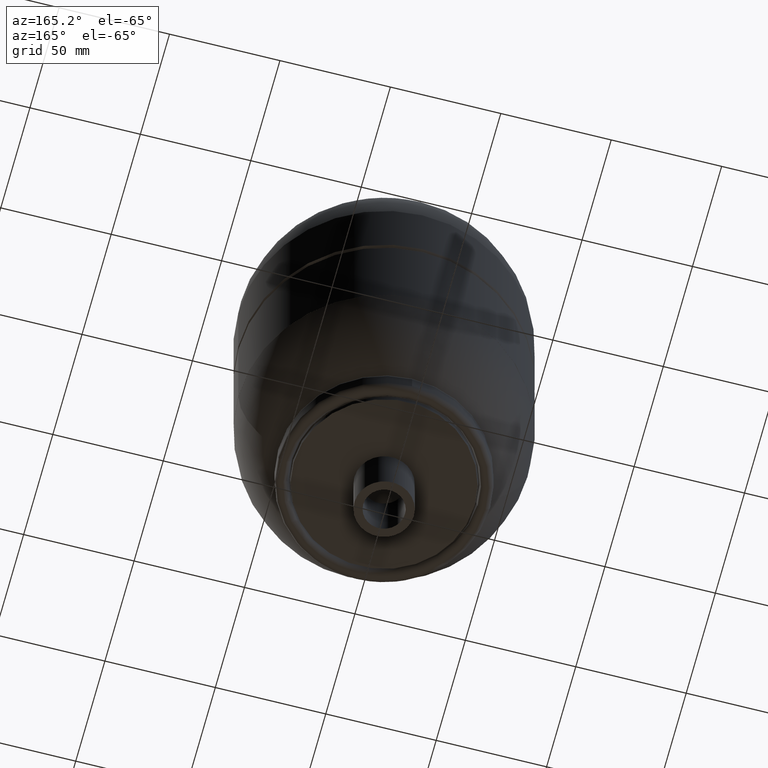
[diagram: clean part render]
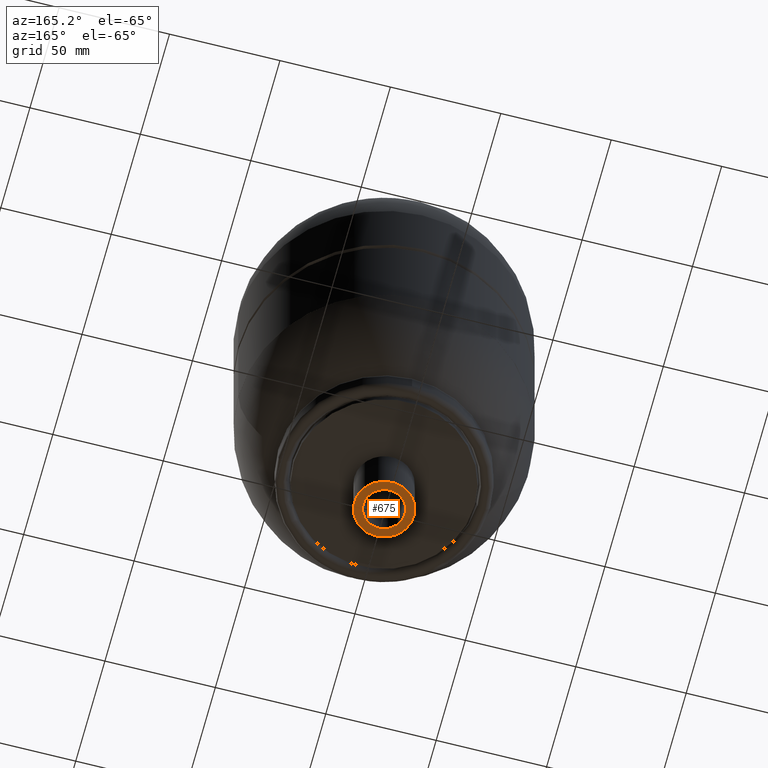
[diagram: same view with one face highlighted and labeled with its STEP entity id]
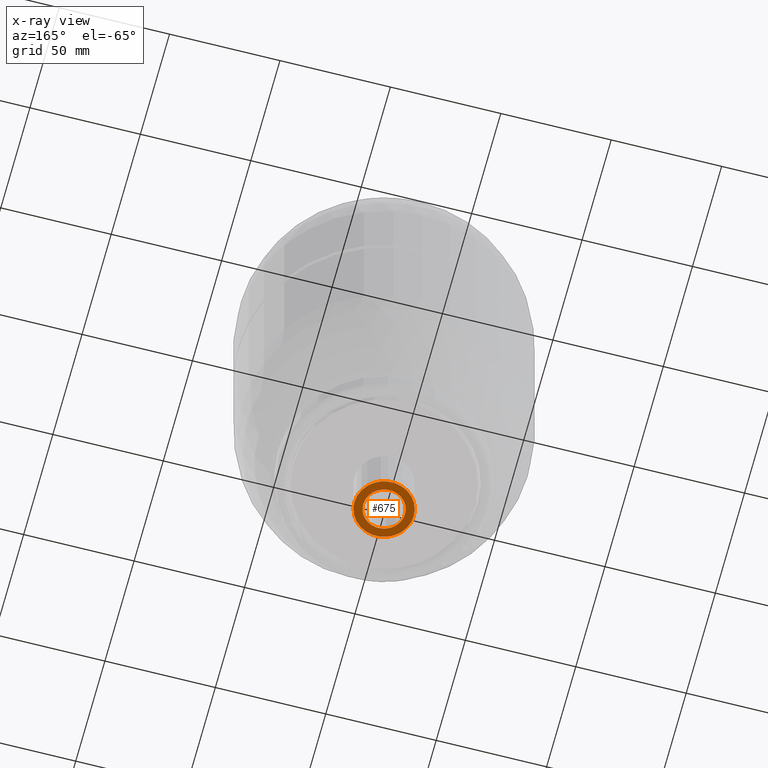
[diagram: x-ray of the same camera — body ghosted, the highlighted face saturated]
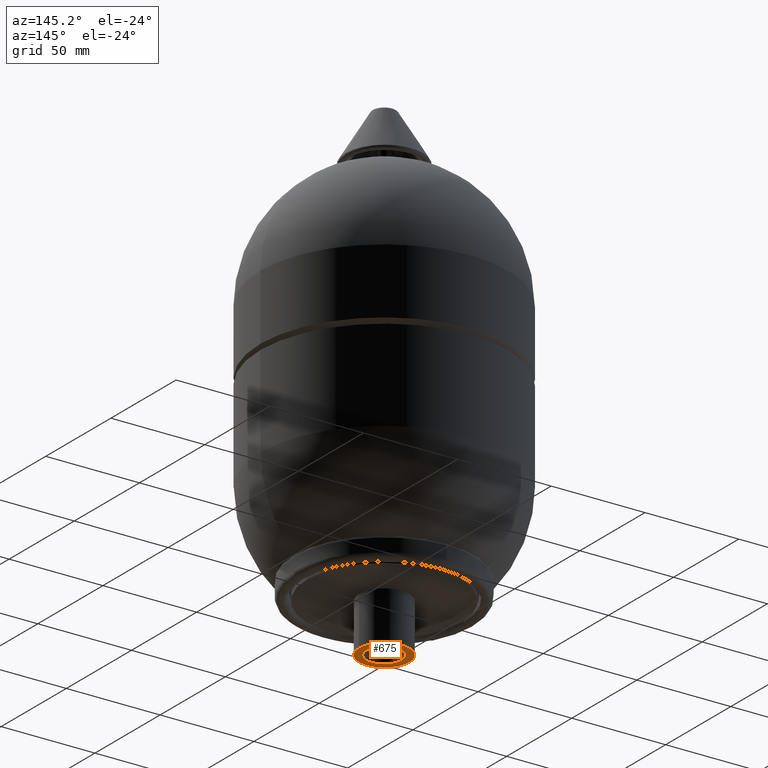
[diagram: same view with one face highlighted and labeled with its STEP entity id]
A machine part, auxiliary view. The second image highlights one B-rep face of the part: STEP entity #675.
The next image is the same camera in x-ray: the body ghosted, the highlighted face saturated — about 0% of this face is hidden behind the body in this view.
A second angle (auxiliary view) of the same face is appended — the face is thin or edge-on in the first view.
In plain terms, the highlighted planar face has unit normal (0, 0, 1).
Its self-contained STEP definition (entity closure, byte-faithful):
#277=CARTESIAN_POINT('',(13.449999999999999,0.0,0.0));
#278=VERTEX_POINT('',#277);
#294=CARTESIAN_POINT('',(-13.449999999999999,-1.647096E-015,0.0));
#295=VERTEX_POINT('',#294);
#302=CARTESIAN_POINT('',(0.0,0.0,0.0));
#303=DIRECTION('',(0.0,0.0,1.0));
#304=DIRECTION('',(1.0,0.0,0.0));
#305=AXIS2_PLACEMENT_3D('',#302,#303,#304);
#306=CIRCLE('',#305,13.449999999999999);
#307=EDGE_CURVE('',#295,#278,#306,.T.);
#317=CARTESIAN_POINT('',(9.449999999999999,0.0,0.0));
#318=VERTEX_POINT('',#317);
#327=CARTESIAN_POINT('',(-9.449999999999999,-1.157253E-015,0.0));
#328=VERTEX_POINT('',#327);
#329=CARTESIAN_POINT('',(0.0,0.0,0.0));
#330=DIRECTION('',(0.0,0.0,1.0));
#331=DIRECTION('',(1.0,0.0,0.0));
#332=AXIS2_PLACEMENT_3D('',#329,#330,#331);
#333=CIRCLE('',#332,9.449999999999999);
#334=EDGE_CURVE('',#328,#318,#333,.T.);
#634=CARTESIAN_POINT('',(0.0,0.0,0.0));
#635=DIRECTION('',(0.0,0.0,1.0));
#636=DIRECTION('',(1.0,0.0,0.0));
#637=AXIS2_PLACEMENT_3D('',#634,#635,#636);
#638=CIRCLE('',#637,9.449999999999999);
#639=EDGE_CURVE('',#318,#328,#638,.T.);
#650=CARTESIAN_POINT('',(0.0,0.0,0.0));
#651=DIRECTION('',(0.0,0.0,1.0));
#652=DIRECTION('',(1.0,0.0,0.0));
#653=AXIS2_PLACEMENT_3D('',#650,#651,#652);
#654=CIRCLE('',#653,13.449999999999999);
#655=EDGE_CURVE('',#278,#295,#654,.T.);
#662=CARTESIAN_POINT('',(0.0,0.0,0.0));
#663=DIRECTION('',(0.0,0.0,1.0));
#664=DIRECTION('',(1.0,0.0,0.0));
#665=AXIS2_PLACEMENT_3D('',#662,#663,#664);
#666=PLANE('',#665);
#667=ORIENTED_EDGE('',*,*,#655,.F.);
#668=ORIENTED_EDGE('',*,*,#307,.F.);
#669=EDGE_LOOP('',(#667,#668));
#670=FACE_OUTER_BOUND('',#669,.T.);
#671=ORIENTED_EDGE('',*,*,#639,.T.);
#672=ORIENTED_EDGE('',*,*,#334,.T.);
#673=EDGE_LOOP('',(#671,#672));
#674=FACE_BOUND('',#673,.T.);
#675=ADVANCED_FACE('',(#670,#674),#666,.F.);